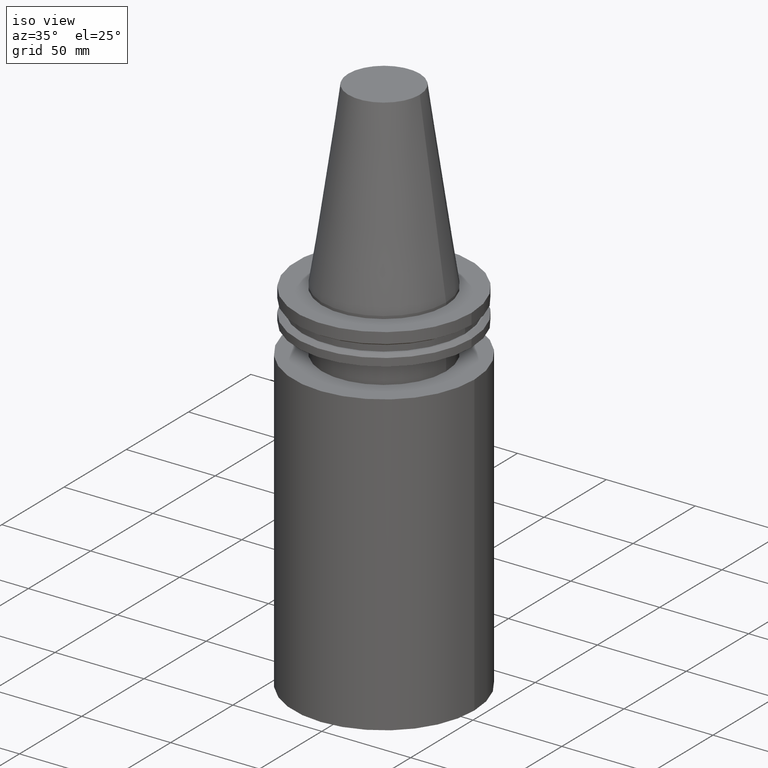
[diagram: clean part render]
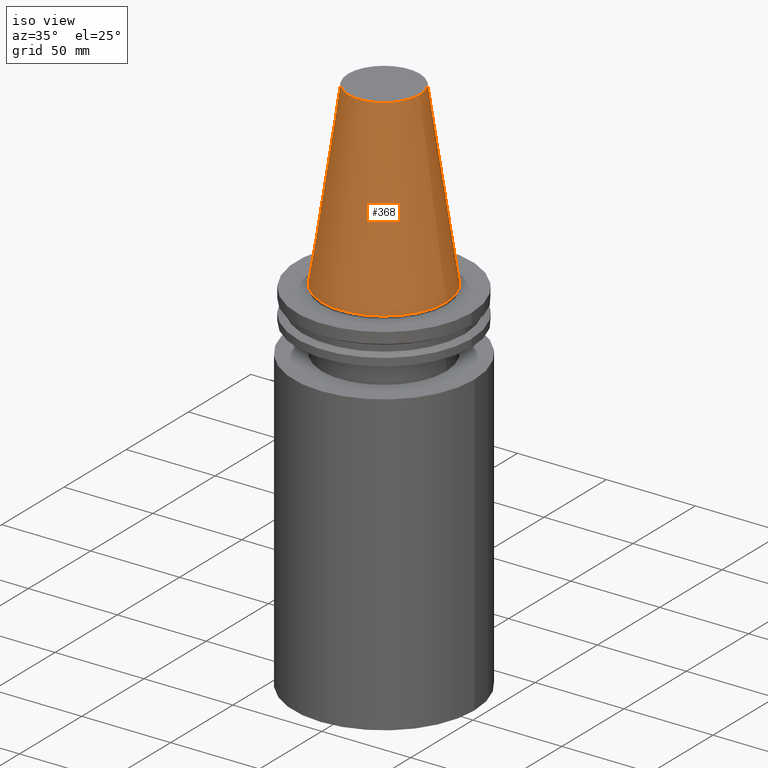
[diagram: same view with one face highlighted and labeled with its STEP entity id]
A machine part, iso view. The second image highlights one B-rep face of the part: STEP entity #368.
In plain terms, the highlighted conical surface has half-angle 8.297 deg.
Its self-contained STEP definition (entity closure, byte-faithful):
#15 = CARTESIAN_POINT ( 'NONE',  ( 0.000000000000000000, 0.000000000000000000, 0.000000000000000000 ) ) ;
#16 = DIRECTION ( 'NONE',  ( 1.000000000000000000, 0.000000000000000000, 0.000000000000000000 ) ) ;
#24 = DIRECTION ( 'NONE',  ( -0.000000000000000000, -0.000000000000000000, 1.000000000000000000 ) ) ;
#25 = FACE_OUTER_BOUND ( 'NONE', #124, .T. ) ;
#34 = VERTEX_POINT ( 'NONE', #287 ) ;
#49 = DIRECTION ( 'NONE',  ( 1.000000000000000000, 0.000000000000000000, 0.000000000000000000 ) ) ;
#80 = EDGE_CURVE ( 'NONE', #370, #370, #111, .T. ) ;
#82 = AXIS2_PLACEMENT_3D ( 'NONE', #388, #360, #175 ) ;
#111 = CIRCLE ( 'NONE', #382, 20.10819343178871321 ) ;
#124 = EDGE_LOOP ( 'NONE', ( #284 ) ) ;
#128 = EDGE_CURVE ( 'NONE', #34, #34, #130, .T. ) ;
#130 = CIRCLE ( 'NONE', #244, 34.92499999999999005 ) ;
#137 = CONICAL_SURFACE ( 'NONE', #82, 34.92499999999999005, 0.1448138465474119452 ) ;
#175 = DIRECTION ( 'NONE',  ( -1.000000000000000000, 0.000000000000000000, 0.000000000000000000 ) ) ;
#244 = AXIS2_PLACEMENT_3D ( 'NONE', #15, #24, #16 ) ;
#246 = CARTESIAN_POINT ( 'NONE',  ( 20.10819343178871321, 0.000000000000000000, 101.5999999999999801 ) ) ;
#284 = ORIENTED_EDGE ( 'NONE', *, *, #128, .T. ) ;
#287 = CARTESIAN_POINT ( 'NONE',  ( 34.92499999999999005, 0.000000000000000000, 0.000000000000000000 ) ) ;
#317 = ORIENTED_EDGE ( 'NONE', *, *, #80, .F. ) ;
#332 = FACE_BOUND ( 'NONE', #345, .T. ) ;
#345 = EDGE_LOOP ( 'NONE', ( #317 ) ) ;
#353 = DIRECTION ( 'NONE',  ( -0.000000000000000000, -0.000000000000000000, 1.000000000000000000 ) ) ;
#360 = DIRECTION ( 'NONE',  ( 0.000000000000000000, 0.000000000000000000, -1.000000000000000000 ) ) ;
#368 = ADVANCED_FACE ( 'NONE', ( #332, #25 ), #137, .T. ) ;
#370 = VERTEX_POINT ( 'NONE', #246 ) ;
#382 = AXIS2_PLACEMENT_3D ( 'NONE', #386, #353, #49 ) ;
#386 = CARTESIAN_POINT ( 'NONE',  ( 0.000000000000000000, 0.000000000000000000, 101.5999999999999801 ) ) ;
#388 = CARTESIAN_POINT ( 'NONE',  ( 0.000000000000000000, 0.000000000000000000, 0.000000000000000000 ) ) ;